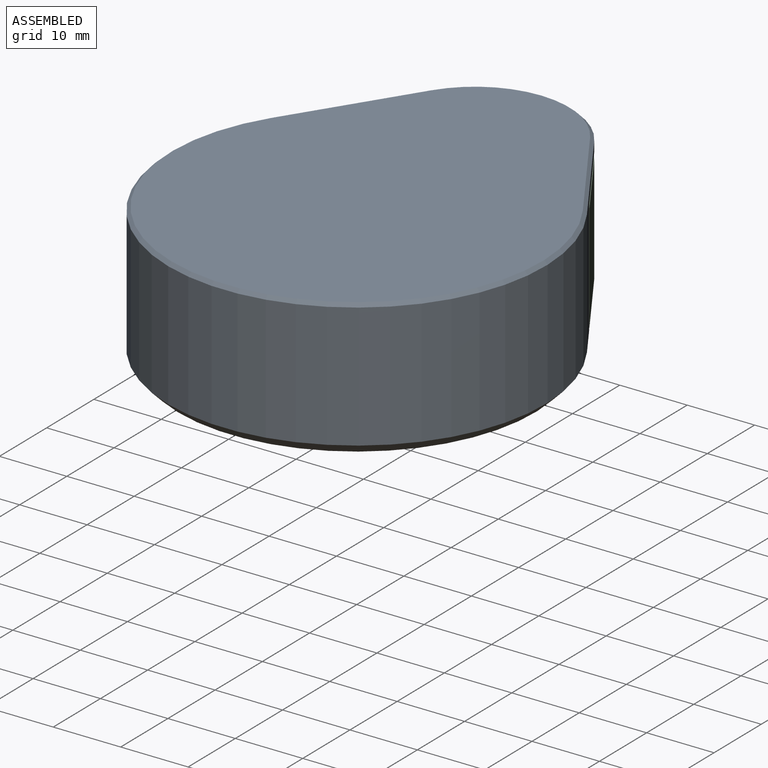
[diagram: assembled view]
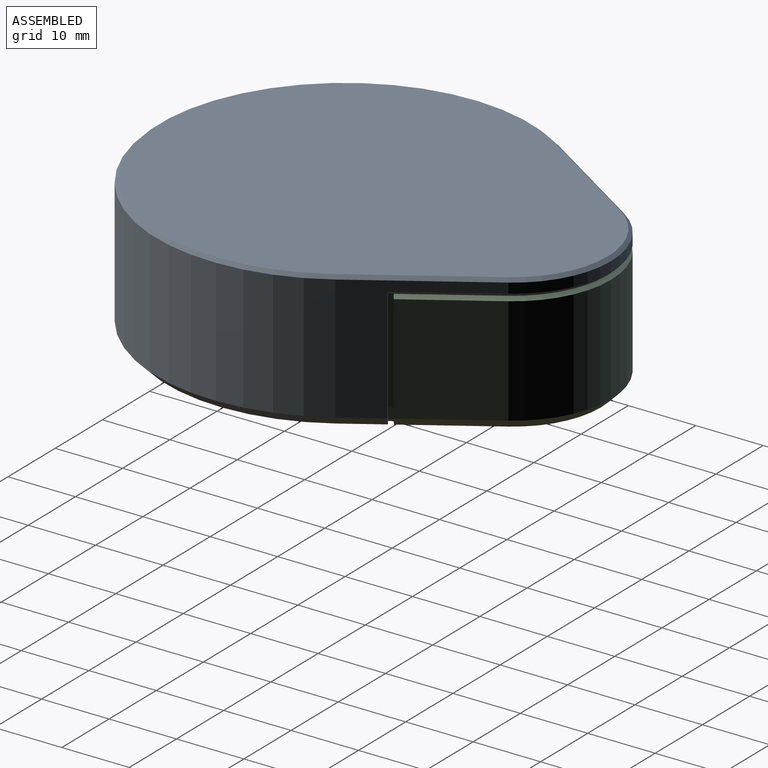
[diagram: assembled view, second angle]
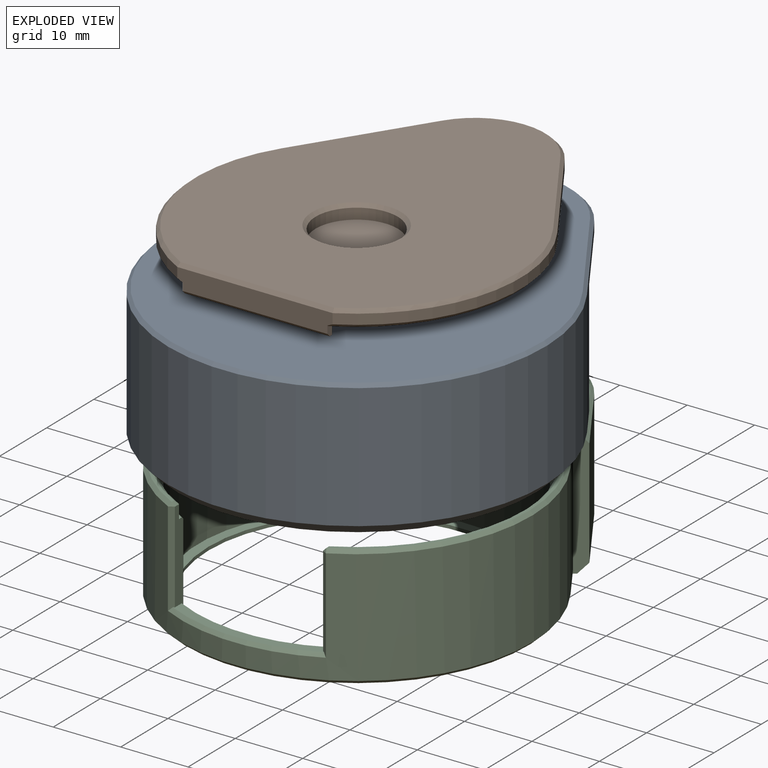
[diagram: exploded view]
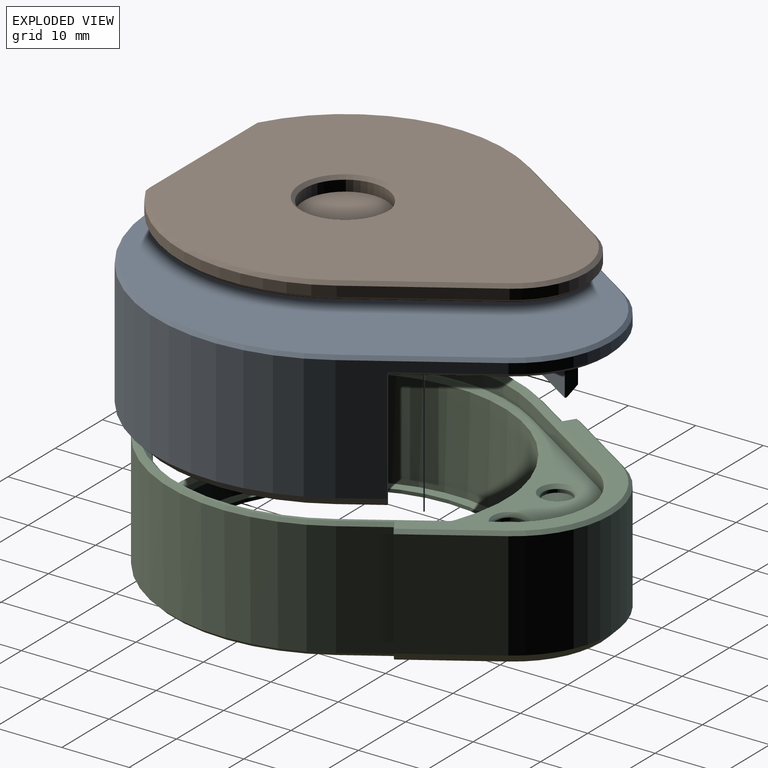
[diagram: exploded view, second angle]
ASSEMBLY  parts=3 mates=3
PART A: 37 faces, bbox 56x67.5x20.5 mm
  f0: plane 62.61x52.5mm, normal (0,0,1), area 2316.3mm2, adj f1,f8,f9,f10,f11,f17,f18,f19
  f1: cylinder r=26.25mm len=52.5mm, axis (0,0,1), area 1953.4mm2, adj f0,f6,f9,f10,f28,f30,f32,f34
  f2: plane 18.5x17.71mm, normal (0.84,0.54,0), area 139.1mm2, adj f3,f5,f11,f12,f21,f24
  f3: cylinder r=14.5mm len=24.41mm, axis (0,0,-1), area 43.5mm2, adj f2,f4,f22,f26
  f4: plane 18.5x17.71mm, normal (-0.84,0.54,0), area 139.1mm2, adj f3,f5,f8,f14,f23,f27
  f5: cylinder r=28mm len=56mm, axis (0,0,-1), area 2218.3mm2, adj f2,f4,f13,f25
  f6: plane 53x46.14mm, normal (0,0,1), area 31.4mm2, adj f1,f8,f9,f10,f11,f12,f13,f14
  f7: plane 66.5x55mm, normal (0,0,-1), area 2688.6mm2, adj f24,f25,f26,f27
  f8: plane 18.5x1.47mm, normal (0.54,0.84,0), area 30.5mm2, adj f0,f4,f6,f9,f14,f23
  f9: plane 18x5.33mm, normal (0.84,-0.54,0), area 113.9mm2, adj f0,f1,f6,f8
  f10: plane 18x5.33mm, normal (-0.84,-0.54,0), area 113.9mm2, adj f0,f1,f6,f11
  f11: plane 18.5x1.47mm, normal (-0.54,0.84,0), area 30.5mm2, adj f0,f2,f6,f10,f12,f21
  f12: plane 6.14x4.68mm, normal (0.6,0.38,0.71), area 13.4mm2, adj f2,f6,f11,f13
  f13: cone r=26.5mm half-angle=45deg, axis (0,0,-1), area 247.6mm2, adj f5,f6,f12,f14
  f14: plane 6.14x4.68mm, normal (-0.6,0.38,0.71), area 13.4mm2, adj f4,f6,f8,f13
  f15: cylinder r=6.1mm len=12.2mm, axis (0,0,1), area 61.3mm2, adj f16,f36
  f16: plane 12.2x12.2mm, normal (0,0,1), area 116.9mm2, adj f15
  f17: plane 2x1.16mm, normal (-1,0,0), area 2.3mm2, adj f0,f19,f28,f29
  f18: plane 2x1.16mm, normal (1,0,0), area 2.3mm2, adj f0,f19,f33,f35
  f19: plane 21.5x2mm, normal (0,1,0), area 43mm2, adj f0,f17,f18,f31
  f20: plane 20.5x3.25mm, normal (0,0,1), area 52.3mm2, adj f29,f31,f32,f33
  f21: plane 12.66x8.37mm, normal (0.6,0.38,0.71), area 10.4mm2, adj f0,f2,f11,f22
  f22: cone r=14.5mm half-angle=45deg, axis (0,0,-1), area 20.2mm2, adj f0,f3,f21,f23
  f23: plane 12.66x8.37mm, normal (-0.6,0.38,0.71), area 10.4mm2, adj f0,f4,f8,f22
  f24: plane 17.98x11.78mm, normal (0.6,0.38,-0.71), area 14.9mm2, adj f2,f7,f25,f26
  f25: cone r=28mm half-angle=45deg, axis (0,0,1), area 84mm2, adj f5,f7,f24,f27
  f26: cone r=14.5mm half-angle=45deg, axis (0,0,1), area 20.2mm2, adj f3,f7,f24,f27
  f27: plane 17.98x11.78mm, normal (-0.6,0.38,-0.71), area 14.9mm2, adj f4,f7,f25,f26
  f28: plane 2x0.72mm, normal (-0.53,0.85,0), area 1.7mm2, adj f0,f1,f17,f30
  f29: plane 1.62x0.5mm, normal (-0.71,0,0.71), area 0.8mm2, adj f17,f20,f30,f31
  f30: bspline ~1.22x1mm, area 0.8mm2, adj f1,f28,f29,f32
  f31: plane 21.5x0.5mm, normal (0,0.71,0.71), area 14.8mm2, adj f19,f20,f29,f33
  f32: cone r=26.25mm half-angle=45deg, axis (0,0,1), area 15.1mm2, adj f1,f20,f30,f34
  f33: plane 1.62x0.5mm, normal (0.71,0,0.71), area 0.8mm2, adj f18,f20,f31,f34
  f34: bspline ~1.23x1.01mm, area 0.8mm2, adj f1,f32,f33,f35
  f35: plane 2x0.72mm, normal (0.53,0.85,0), area 1.7mm2, adj f0,f1,f18,f34
  f36: cone r=6.1mm half-angle=45deg, axis (0,0,1), area 28.2mm2, adj f0,f15
PART B: 33 faces, bbox 48.8x57.7x4 mm
  f0: plane 56.75x47.8mm, normal (0,0,-1), area 1955.3mm2, adj f12,f13,f14,f18,f19,f20,f21,f22
  f1: plane 56.4x47.8mm, normal (0,0,1), area 1871.5mm2, adj f26,f27,f28,f29,f30,f31,f32
  f2: cylinder r=24.4mm len=34.68mm, axis (0,0,-1), area 60.3mm2, adj f3,f11,f18,f28
  f3: plane 17.71x11.36mm, normal (-0.84,0.54,0), area 31.6mm2, adj f2,f6,f19,f27
  f4: cylinder r=24.4mm len=34.68mm, axis (0,0,-1), area 60.3mm2, adj f5,f11,f22,f32
  f5: plane 17.71x11.36mm, normal (0.84,0.54,0), area 31.6mm2, adj f4,f6,f21,f31
  f6: cylinder r=10.9mm len=18.35mm, axis (0,0,-1), area 32.7mm2, adj f3,f5,f20,f29
  f7: cylinder r=2.1mm len=4.2mm, axis (0,0,-1), area 22.4mm2, adj f8,f25
  f8: plane 4.2x4.2mm, normal (0,0,-1), area 13.9mm2, adj f7
  f9: cylinder r=2.1mm len=4.2mm, axis (0,0,-1), area 22.4mm2, adj f10,f24
  f10: plane 4.2x4.2mm, normal (0,0,-1), area 13.9mm2, adj f9
  f11: plane 23.08x3.01mm, normal (0,-1,0), area 67.1mm2, adj f2,f4,f12,f14,f18,f22,f23,f30
  f12: plane 1.64x1mm, normal (-1,0,0), area 1.4mm2, adj f0,f11,f13,f15,f18,f23
  f13: plane 21.5x1.5mm, normal (0,1,0), area 32.2mm2, adj f0,f12,f14,f15
  f14: plane 1.64x1mm, normal (1,0,0), area 1.4mm2, adj f0,f11,f13,f15,f22,f23
  f15: plane 21.5x0.5mm, normal (0,0,-1), area 10.8mm2, adj f12,f13,f14,f23
  f16: cylinder r=6.1mm len=12.2mm, axis (0,0,1), area 61.3mm2, adj f17,f26
  f17: plane 12.2x12.2mm, normal (0,0,1), area 116.9mm2, adj f16
  f18: cone r=24.4mm half-angle=45deg, axis (0,0,1), area 28.5mm2, adj f0,f2,f11,f12,f19
  f19: plane 17.98x11.78mm, normal (-0.6,0.38,-0.71), area 14.9mm2, adj f0,f3,f18,f20
  f20: cone r=10.9mm half-angle=45deg, axis (0,0,1), area 15.1mm2, adj f0,f6,f19,f21
  f21: plane 17.98x11.78mm, normal (0.6,0.38,-0.71), area 14.9mm2, adj f0,f5,f20,f22
  f22: cone r=24.4mm half-angle=45deg, axis (0,0,1), area 28.5mm2, adj f0,f4,f11,f14,f21
  f23: plane 21.5x0.5mm, normal (0,-0.71,-0.71), area 15.2mm2, adj f11,f12,f14,f15
  f24: cone r=2.1mm half-angle=45deg, axis (0,0,-1), area 10.4mm2, adj f0,f9
  f25: cone r=2.6mm half-angle=45deg, axis (0,0,-1), area 10.4mm2, adj f0,f7
  f26: cone r=6.1mm half-angle=45deg, axis (0,0,1), area 28.2mm2, adj f1,f16
  f27: plane 17.98x11.78mm, normal (-0.6,0.38,0.71), area 14.9mm2, adj f1,f3,f28,f29
  f28: cone r=23.9mm half-angle=45deg, axis (0,0,-1), area 28.1mm2, adj f1,f2,f27,f30
  f29: cone r=10.4mm half-angle=45deg, axis (0,0,-1), area 15.1mm2, adj f1,f6,f27,f31
  f30: plane 23.08x0.5mm, normal (0,-0.71,0.71), area 16.2mm2, adj f1,f11,f28,f32
  f31: plane 17.98x11.78mm, normal (0.6,0.38,0.71), area 14.9mm2, adj f1,f5,f29,f32
  f32: cone r=23.9mm half-angle=45deg, axis (0,0,-1), area 28.1mm2, adj f1,f4,f30,f31
PART C: 73 faces, bbox 52x65.5x18 mm
  f0: plane 57.89x49mm, normal (0,0,1), area 289.8mm2, adj f15,f16,f17,f18,f19,f20,f21,f46
  f1: plane 61.76x51mm, normal (0,0,1), area 182.8mm2, adj f9,f10,f26,f27,f28,f29,f30,f31
  f2: cylinder r=23.5mm len=47mm, axis (0,0,1), area 1870.9mm2, adj f7,f43,f44,f45,f56
  f3: cylinder r=26mm len=52mm, axis (0,0,-1), area 1552.2mm2, adj f4,f5,f30,f33,f34,f35,f38,f41
  f4: plane 17x5.96mm, normal (-0.84,0.54,0), area 120.4mm2, adj f3,f9,f29,f42
  f5: plane 17x5.96mm, normal (0.84,0.54,0), area 120.4mm2, adj f3,f10,f39,f40
  f6: plane 63.5x51mm, normal (0,0,-1), area 814.2mm2, adj f9,f10,f13,f40,f41,f42,f48,f49
  f7: plane 47x47mm, normal (0,0,1), area 214.4mm2, adj f2,f13
  f8: plane 16x11.75mm, normal (-0.84,0.54,0), area 223.4mm2, adj f9,f12,f28,f50
  f9: plane 18x2.1mm, normal (-0.54,-0.84,0), area 35mm2, adj f1,f4,f6,f8,f28,f29,f42,f50
  f10: plane 18x2.1mm, normal (0.54,-0.84,0), area 35mm2, adj f1,f5,f6,f11,f26,f39,f40,f48
  f11: plane 16x11.75mm, normal (0.84,0.54,0), area 223.4mm2, adj f10,f12,f26,f48
  f12: cylinder r=14.5mm len=24.41mm, axis (0,0,1), area 464.2mm2, adj f8,f11,f27,f49
  f13: cylinder r=22mm len=44mm, axis (0,0,1), area 69.1mm2, adj f6,f7
  f14: plane 22.45x4.17mm, normal (0,0,1), area 34.3mm2, adj f15,f16,f33,f34,f35,f44
  f15: plane 13.74x1.69mm, normal (1,0,0), area 21.2mm2, adj f0,f14,f19,f31,f33,f43,f44,f56
  f16: plane 13.74x1.69mm, normal (-1,0,0), area 21.2mm2, adj f0,f14,f17,f35,f36,f44,f45,f56
  f17: cylinder r=24.5mm len=35.12mm, axis (0,0,1), area 82.1mm2, adj f0,f16,f20,f55
  f18: plane 17.71x11.36mm, normal (0.84,-0.54,0), area 42.1mm2, adj f0,f19,f21,f52
  f19: cylinder r=24.5mm len=35.12mm, axis (0,0,1), area 82.1mm2, adj f0,f15,f18,f51
  f20: plane 17.71x11.36mm, normal (-0.84,-0.54,0), area 42.1mm2, adj f0,f17,f21,f54
  f21: cylinder r=11mm len=18.52mm, axis (0,0,1), area 44mm2, adj f0,f18,f20,f53
  f22: cylinder r=2.1mm len=4.2mm, axis (0,0,1), area 6.6mm2, adj f23,f46
  f23: plane 4.2x4.2mm, normal (0,0,1), area 13.9mm2, adj f22
  f24: cylinder r=2.1mm len=4.2mm, axis (0,0,1), area 6.6mm2, adj f25,f47
  f25: plane 4.2x4.2mm, normal (0,0,1), area 13.9mm2, adj f24
  f26: plane 12.02x7.96mm, normal (0.6,0.38,0.71), area 9.9mm2, adj f1,f10,f11,f27
  f27: cone r=14mm half-angle=45deg, axis (0,0,-1), area 20.2mm2, adj f1,f12,f26,f28
  f28: plane 12.02x7.96mm, normal (-0.6,0.38,0.71), area 9.9mm2, adj f1,f8,f9,f27
  f29: plane 6.23x4.24mm, normal (-0.6,0.38,0.71), area 5mm2, adj f1,f4,f9,f30
  f30: cone r=25.5mm half-angle=45deg, axis (0,0,-1), area 30.5mm2, adj f1,f3,f29,f32
  f31: plane 0.87x0.5mm, normal (0.71,0,0.71), area 0.5mm2, adj f1,f15,f32,f51
  f32: plane 0.73x0.5mm, normal (0.46,-0.75,0.46), area 0.2mm2, adj f30,f31,f33
  f33: plane 14x0.73mm, normal (0.52,-0.85,0), area 11.6mm2, adj f3,f14,f15,f32,f34
  f34: cone r=26mm half-angle=45deg, axis (0,0,-1), area 16.8mm2, adj f3,f14,f33,f35
  f35: plane 14x0.73mm, normal (-0.52,-0.85,0), area 11.6mm2, adj f3,f14,f16,f34,f37
  f36: plane 0.87x0.5mm, normal (-0.71,0,0.71), area 0.5mm2, adj f1,f16,f37,f55
  f37: plane 0.73x0.5mm, normal (-0.46,-0.75,0.46), area 0.2mm2, adj f35,f36,f38
  f38: cone r=25.5mm half-angle=45deg, axis (0,0,-1), area 30.5mm2, adj f1,f3,f37,f39
  f39: plane 6.23x4.24mm, normal (0.6,0.38,0.71), area 5mm2, adj f1,f5,f10,f38
  f40: plane 6.23x4.24mm, normal (0.6,0.38,-0.71), area 5mm2, adj f5,f6,f10,f41
  f41: cone r=26mm half-angle=45deg, axis (0,0,1), area 78mm2, adj f3,f6,f40,f42
  f42: plane 6.23x4.24mm, normal (-0.6,0.38,-0.71), area 5mm2, adj f4,f6,f9,f41
  f43: plane 11.77x0.44mm, normal (0.86,0.51,0), area 5.9mm2, adj f2,f15,f44,f56
  f44: cone r=24mm half-angle=45deg, axis (0,0,1), area 16.3mm2, adj f2,f14,f15,f16,f43,f45
  f45: plane 11.77x0.44mm, normal (-0.86,0.51,0), area 5.9mm2, adj f2,f16,f44,f56
  f46: cone r=2.6mm half-angle=45deg, axis (0,0,1), area 10.4mm2, adj f0,f22
  f47: cone r=2.1mm half-angle=45deg, axis (0,0,1), area 10.4mm2, adj f0,f24
  f48: plane 12.56x8.8mm, normal (0.6,0.38,-0.71), area 29.6mm2, adj f6,f10,f11,f49
  f49: cone r=13mm half-angle=45deg, axis (0,0,1), area 58.4mm2, adj f6,f12,f48,f50
  f50: plane 12.56x8.8mm, normal (-0.6,0.38,-0.71), area 29.6mm2, adj f6,f8,f9,f49
  f51: cone r=24.5mm half-angle=45deg, axis (0,0,1), area 29.2mm2, adj f1,f19,f31,f52
  f52: plane 17.98x11.78mm, normal (0.6,-0.38,0.71), area 14.9mm2, adj f1,f18,f51,f53
  f53: cone r=11.5mm half-angle=45deg, axis (0,0,1), area 15.9mm2, adj f1,f21,f52,f54
  f54: plane 17.98x11.78mm, normal (-0.6,-0.38,0.71), area 14.9mm2, adj f1,f20,f53,f55
  f55: cone r=24.5mm half-angle=45deg, axis (0,0,1), area 29.2mm2, adj f1,f17,f36,f54
  f56: cone r=24mm half-angle=45deg, axis (0,0,1), area 89.2mm2, adj f0,f2,f15,f16,f43,f45
  f57: plane 7x0.75mm, normal (1,0,0), area 5.2mm2, adj f6,f58,f70,f71
  f58: plane 3x1.73mm, normal (0.5,-0.87,0), area 2.6mm2, adj f6,f57,f59,f71
  f59: plane 3x1.73mm, normal (-0.5,-0.87,0), area 2.6mm2, adj f6,f58,f60,f71
  f60: plane 3.46x0.75mm, normal (-1,0,0), area 2.6mm2, adj f6,f59,f61,f71
  f61: plane 2.5x1.44mm, normal (-0.5,0.87,0), area 2.2mm2, adj f6,f60,f62,f71
  f62: plane 4.11x0.75mm, normal (-1,0,0), area 3.1mm2, adj f6,f61,f70,f71
  f63: plane 5.85x0.75mm, normal (-1,0,0), area 4.4mm2, adj f64,f69,f71,f72
  f64: plane 1.5x0.87mm, normal (-0.5,-0.87,0), area 1.3mm2, adj f63,f65,f71,f72
  f65: plane 2.96x0.75mm, normal (1,0,0), area 2.2mm2, adj f64,f66,f71,f72
  f66: plane 2.5x1.44mm, normal (0.5,-0.87,0), area 2.2mm2, adj f65,f67,f71,f72
  f67: plane 2.31x0.75mm, normal (1,0,0), area 1.7mm2, adj f66,f68,f71,f72
  f68: plane 2x1.15mm, normal (0.5,0.87,0), area 1.7mm2, adj f67,f69,f71,f72
  f69: plane 2x1.15mm, normal (-0.5,0.87,0), area 1.7mm2, adj f63,f68,f71,f72
  f70: plane 3.5x2.02mm, normal (0.5,0.87,0), area 3mm2, adj f6,f57,f62,f71
  f71: plane 10.75x6mm, normal (0,0,-1), area 24.4mm2, adj f57,f58,f59,f60,f61,f62,f63,f64
  f72: plane 7.87x4mm, normal (0,0,-1), area 19.3mm2, adj f63,f64,f65,f66,f67,f68,f69
PLACE A rot(axis=(0,-1,0),180deg) t=(0,0,20.5)mm
PLACE B rot(axis=(0,0,-1),0.1deg) t=(0,0,15.5)mm
PLACE C rot(axis=(0,0,-1),0.1deg) t=(0,0,0)mm
MATE planar B.f7 <-> C.f22  axis (0,0,-1) through (5.05,27.99,15.5)mm
MATE revolute B.f2 <-> A.f1  axis (0,0,1) through (0,0,18)mm
MATE revolute B.f7 <-> C.f22  axis (0,0,-1) through (5.05,27.99,15.5)mm
